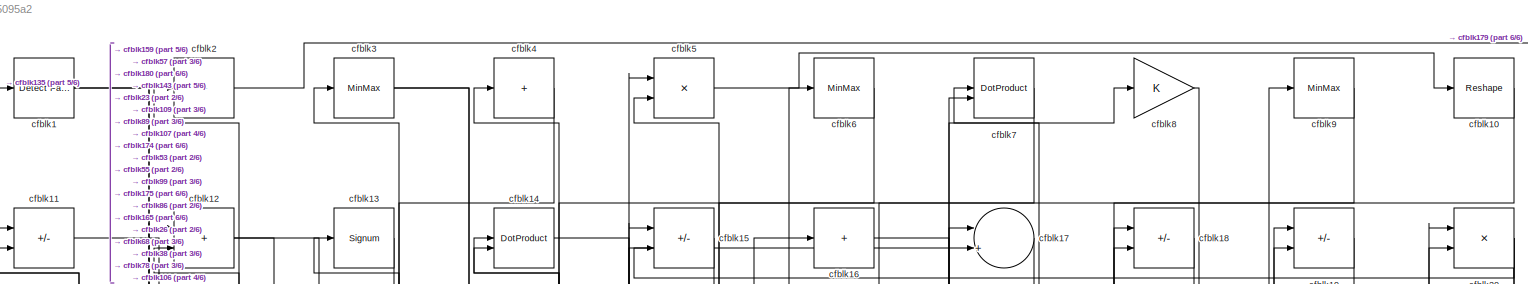
[diagram: root canvas - part 1/6, full width, top band]
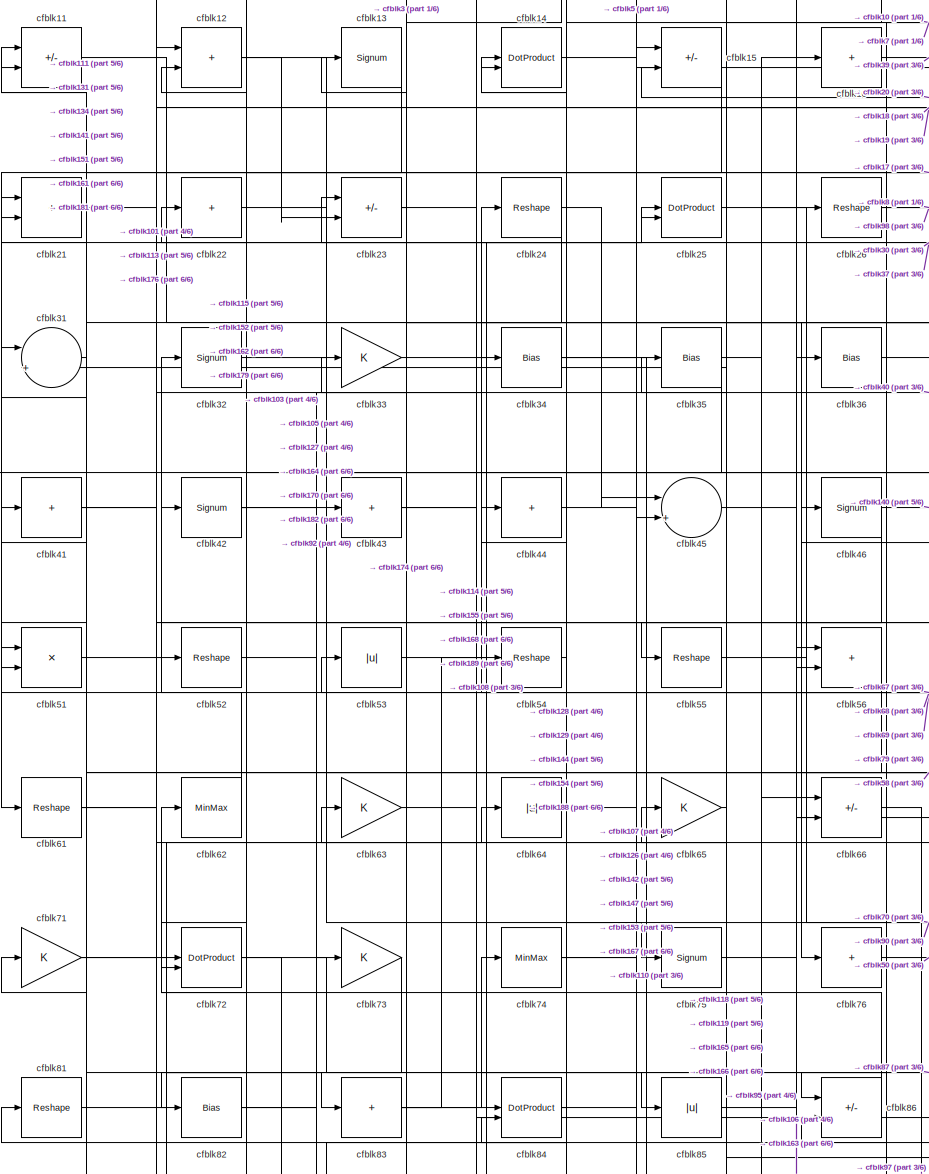
[diagram: root canvas - part 2/6, top left region]
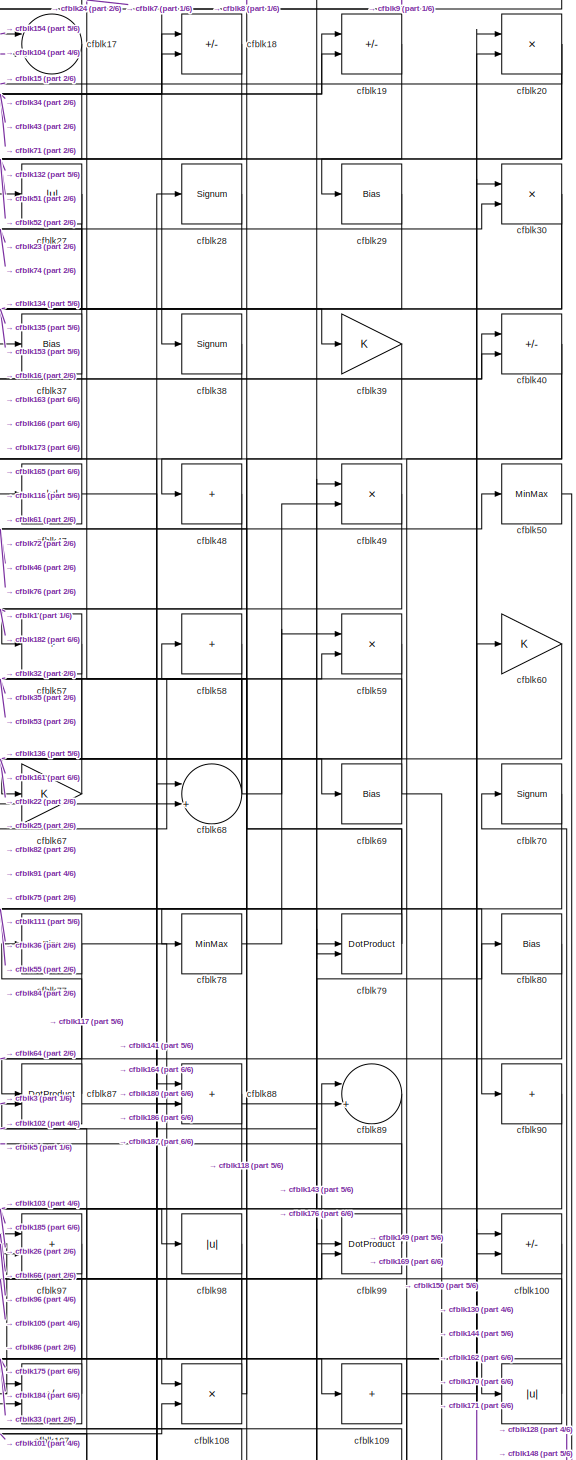
[diagram: root canvas - part 3/6, top right region]
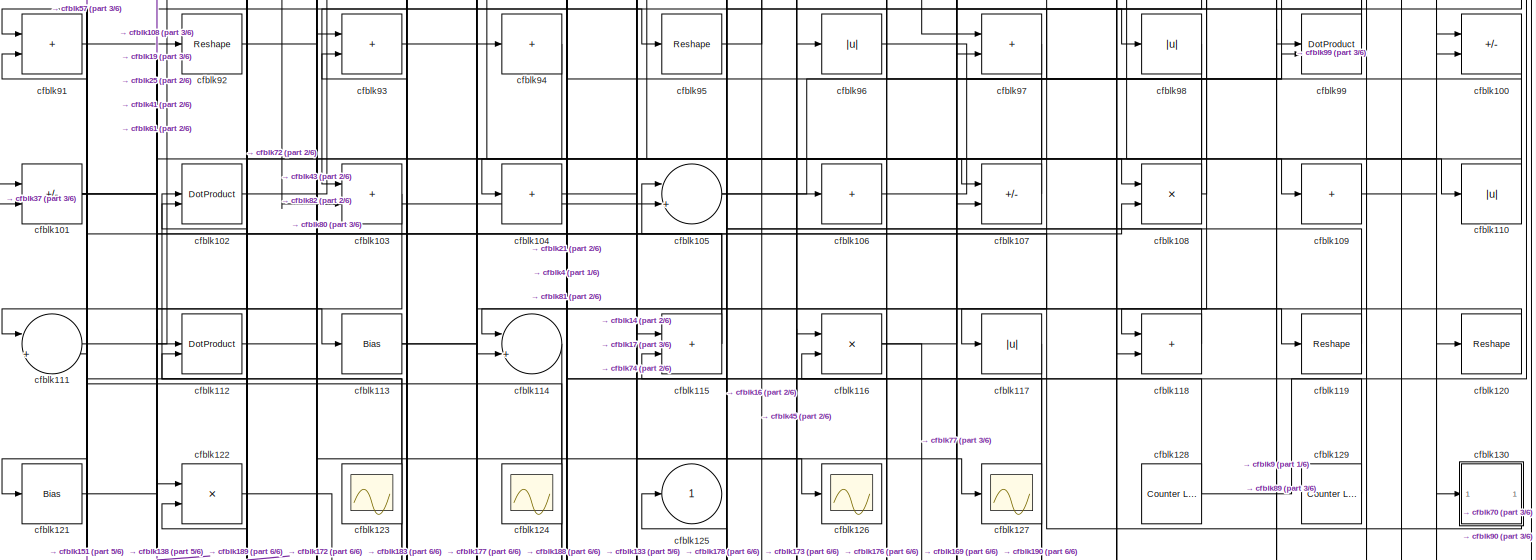
[diagram: root canvas - part 4/6, full width, middle band]
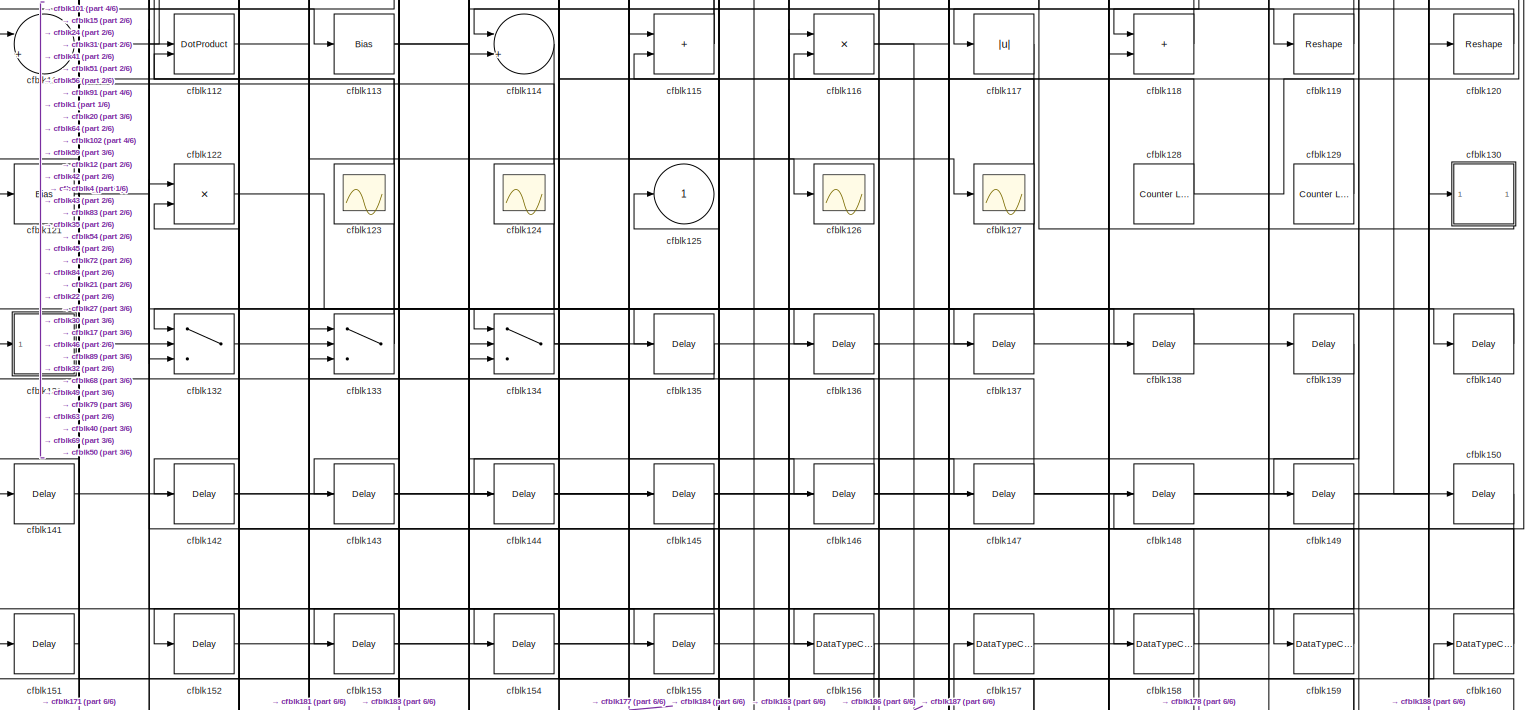
[diagram: root canvas - part 5/6, full width, bottom band]
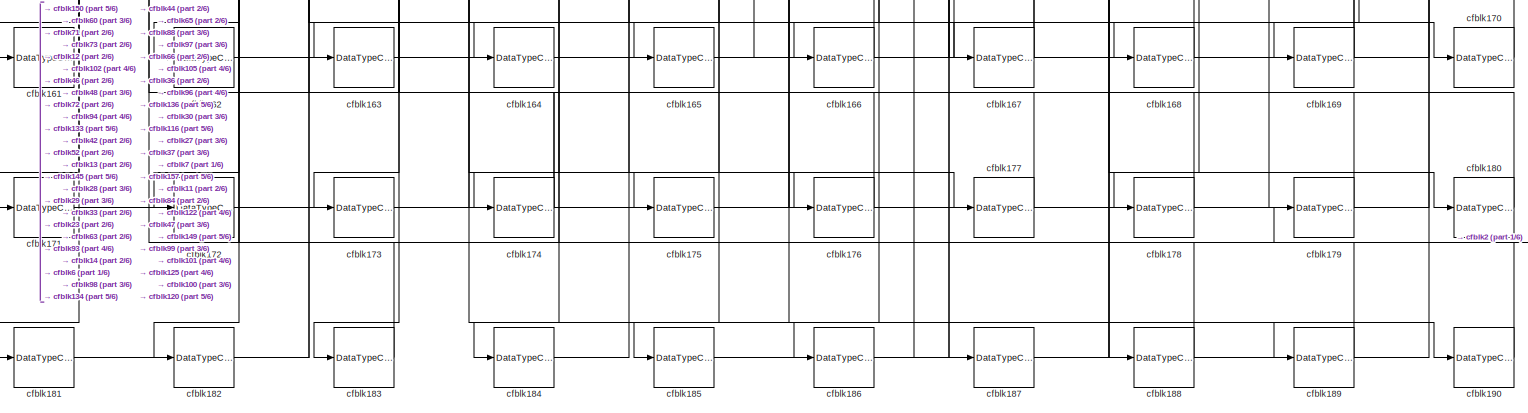
[diagram: root canvas - part 6/6, full width, bottom band]
MODEL slx_6407d25095a2
KIND model
CONFIG AbsTol = auto
CONFIG EnableMultiTasking = off
CONFIG FixedStep = auto
CONFIG MaxStep = auto
CONFIG MinStep = auto
CONFIG RelTol = 1e-3
CONFIG SampleTimeConstraint = Unconstrained
CONFIG SolverName = VariableStepAuto
CONFIG StartTime = 0.0
CONFIG StopTime = 10.0
BLOCK [Reference] cfblk1  REF=hdlsllib/Logic and Bit
Operations/Detect Fall
Nonpositive
  SourceBlock = hdlsllib/Logic and Bit\nOperations/Detect Fall\nNonpositive
  SourceType = Detect Fall Nonpositive
BLOCK [Reshape] cfblk10
BLOCK [Sum] cfblk100
  IconShape = rectangular
  Inputs = +-
BLOCK [Sum] cfblk101
  IconShape = rectangular
  Inputs = +-
BLOCK [DotProduct] cfblk102
  OutDataTypeStr = Inherit: Inherit via internal rule
BLOCK [Sum] cfblk103
  IconShape = rectangular
BLOCK [Sum] cfblk104
  IconShape = rectangular
  Inputs = +
BLOCK [Sum] cfblk105
  Inputs = |++
BLOCK [Sum] cfblk106
  IconShape = rectangular
  Inputs = +
BLOCK [Sum] cfblk107
  IconShape = rectangular
  Inputs = +-
BLOCK [Product] cfblk108
  Inputs = */
  RndMeth = Zero
  SaturateOnIntegerOverflow = on
BLOCK [Sum] cfblk109
  IconShape = rectangular
  Inputs = +
BLOCK [Sum] cfblk11
  IconShape = rectangular
  Inputs = +-
BLOCK [Abs] cfblk110
  SaturateOnIntegerOverflow = off
BLOCK [Sum] cfblk111
  Inputs = |++
BLOCK [DotProduct] cfblk112
  OutDataTypeStr = Inherit: Inherit via internal rule
BLOCK [Bias] cfblk113
  Bias = 0.0
  SaturateOnIntegerOverflow = off
BLOCK [Sum] cfblk114
  Inputs = |++
BLOCK [Sum] cfblk115
  IconShape = rectangular
BLOCK [Product] cfblk116
  Inputs = */
  RndMeth = Zero
  SaturateOnIntegerOverflow = on
BLOCK [Abs] cfblk117
  SaturateOnIntegerOverflow = off
BLOCK [Sum] cfblk118
  IconShape = rectangular
BLOCK [Reshape] cfblk119
BLOCK [Sum] cfblk12
  IconShape = rectangular
BLOCK [Reshape] cfblk120
BLOCK [Bias] cfblk121
  Bias = 0.0
  SaturateOnIntegerOverflow = off
BLOCK [Product] cfblk122
  Inputs = */
  RndMeth = Zero
  SaturateOnIntegerOverflow = on
BLOCK [Scope] cfblk123
  Floating = on
  NumInputPorts = 1
  ScopeSpecificationString = Simulink.scopes.TimeScopeBlockCfg('CurrentConfiguration', extmgr.ConfigurationSet(extmgr.Configuration('Core','General UI',true,'FigureColor',[0.156862745098039 0.156862745098039 0.156862745098039]),extmgr.Configuration('Core','Source UI',true),extmgr.Configuration('Sources','WiredSimulink',true,'DataLoggingVariableName','ScopeData1','DataLoggingSaveFormat','StructureWithTime','DataLoggingLimitDat...<+2713ch>
BLOCK [Scope] cfblk124
  Floating = on
  NumInputPorts = 1
  ScopeSpecificationString = Simulink.scopes.TimeScopeBlockCfg('CurrentConfiguration', extmgr.ConfigurationSet(extmgr.Configuration('Core','General UI',true,'FigureColor',[0.156862745098039 0.156862745098039 0.156862745098039]),extmgr.Configuration('Core','Source UI',true),extmgr.Configuration('Sources','WiredSimulink',true,'DataLoggingVariableName','ScopeData1','DataLoggingSaveFormat','StructureWithTime','DataLoggingLimitDat...<+2713ch>
BLOCK [Outport] cfblk125
  VectorParamsAs1DForOutWhenUnconnected = off
BLOCK [Scope] cfblk126
  Floating = off
  NumInputPorts = 1
  ScopeSpecificationString = Simulink.scopes.TimeScopeBlockCfg('CurrentConfiguration', extmgr.ConfigurationSet(extmgr.Configuration('Core','General UI',true),extmgr.Configuration('Core','Source UI',true),extmgr.Configuration('Sources','WiredSimulink',true,'DataLoggingVariableName','ScopeData2','DataLoggingSaveFormat','Array','DataLoggingLimitDataPoints',true,'DataLoggingDecimation','1'),extmgr.Configuration('Visuals','Time Do...<+868ch>
BLOCK [Scope] cfblk127
  Floating = off
  NumInputPorts = 1
  ScopeSpecificationString = Simulink.scopes.TimeScopeBlockCfg('CurrentConfiguration', extmgr.ConfigurationSet(extmgr.Configuration('Core','General UI',true),extmgr.Configuration('Core','Source UI',true),extmgr.Configuration('Sources','WiredSimulink',true,'DataLoggingVariableName','ScopeData2','DataLoggingSaveFormat','Array','DataLoggingLimitDataPoints',true,'DataLoggingDecimation','1'),extmgr.Configuration('Visuals','Time Do...<+868ch>
BLOCK [Reference] cfblk128  REF=hdlsllib/Sources/Counter
Limited
  SourceBlock = hdlsllib/Sources/Counter\nLimited
  SourceType = Counter Limited
BLOCK [Reference] cfblk129  REF=hdlsllib/Sources/Counter
Limited
  SourceBlock = hdlsllib/Sources/Counter\nLimited
  SourceType = Counter Limited
BLOCK [Signum] cfblk13
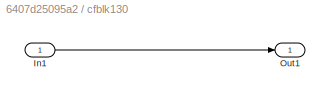
BLOCK [SubSystem] cfblk130
  LibrarySourceBlock = hdlsllib/Ports &\nSubsystems/Subsystem
BLOCK [Inport] cfblk130/In1
BLOCK [Outport] cfblk130/Out1
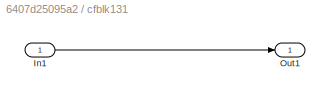
BLOCK [SubSystem] cfblk131
  LibrarySourceBlock = hdlsllib/Ports &\nSubsystems/Subsystem
BLOCK [Inport] cfblk131/In1
BLOCK [Outport] cfblk131/Out1
BLOCK [Switch] cfblk132
  InputSameDT = off
  SaturateOnIntegerOverflow = off
BLOCK [Switch] cfblk133
  InputSameDT = off
  SaturateOnIntegerOverflow = off
BLOCK [Switch] cfblk134
  InputSameDT = off
  SaturateOnIntegerOverflow = off
BLOCK [Delay] cfblk135
  InputPortMap = u0
  SampleTime = 1
BLOCK [Delay] cfblk136
  InputPortMap = u0
  SampleTime = 1
BLOCK [Delay] cfblk137
  InputPortMap = u0
  SampleTime = 1
BLOCK [Delay] cfblk138
  InputPortMap = u0
  SampleTime = 1
BLOCK [Delay] cfblk139
  InputPortMap = u0
  SampleTime = 1
BLOCK [DotProduct] cfblk14
  OutDataTypeStr = Inherit: Inherit via internal rule
BLOCK [Delay] cfblk140
  InputPortMap = u0
  SampleTime = 1
BLOCK [Delay] cfblk141
  InputPortMap = u0
  SampleTime = 1
BLOCK [Delay] cfblk142
  InputPortMap = u0
  SampleTime = 1
BLOCK [Delay] cfblk143
  InputPortMap = u0
  SampleTime = 1
BLOCK [Delay] cfblk144
  InputPortMap = u0
  SampleTime = 1
BLOCK [Delay] cfblk145
  InputPortMap = u0
  SampleTime = 1
BLOCK [Delay] cfblk146
  InputPortMap = u0
  SampleTime = 1
BLOCK [Delay] cfblk147
  InputPortMap = u0
  SampleTime = 1
BLOCK [Delay] cfblk148
  InputPortMap = u0
  SampleTime = 1
BLOCK [Delay] cfblk149
  InputPortMap = u0
  SampleTime = 1
BLOCK [Sum] cfblk15
  IconShape = rectangular
  Inputs = +-
BLOCK [Delay] cfblk150
  InputPortMap = u0
  SampleTime = 1
BLOCK [Delay] cfblk151
  InputPortMap = u0
  SampleTime = 1
BLOCK [Delay] cfblk152
  InputPortMap = u0
  SampleTime = 1
BLOCK [Delay] cfblk153
  InputPortMap = u0
  SampleTime = 1
BLOCK [Delay] cfblk154
  InputPortMap = u0
  SampleTime = 1
BLOCK [Delay] cfblk155
  InputPortMap = u0
  SampleTime = 1
BLOCK [DataTypeConversion] cfblk156
  OutDataTypeStr = uint8
  RndMeth = Floor
  SaturateOnIntegerOverflow = off
BLOCK [DataTypeConversion] cfblk157
  OutDataTypeStr = uint8
  RndMeth = Floor
  SaturateOnIntegerOverflow = off
BLOCK [DataTypeConversion] cfblk158
  OutDataTypeStr = uint8
  RndMeth = Floor
  SaturateOnIntegerOverflow = off
BLOCK [DataTypeConversion] cfblk159
  OutDataTypeStr = uint8
  RndMeth = Floor
  SaturateOnIntegerOverflow = off
BLOCK [Sum] cfblk16
  IconShape = rectangular
  Inputs = +
BLOCK [DataTypeConversion] cfblk160
  OutDataTypeStr = uint8
  RndMeth = Floor
  SaturateOnIntegerOverflow = off
BLOCK [DataTypeConversion] cfblk161
  OutDataTypeStr = uint8
  RndMeth = Floor
  SaturateOnIntegerOverflow = off
BLOCK [DataTypeConversion] cfblk162
  OutDataTypeStr = uint8
  RndMeth = Floor
  SaturateOnIntegerOverflow = off
BLOCK [DataTypeConversion] cfblk163
  RndMeth = Floor
  SaturateOnIntegerOverflow = off
BLOCK [DataTypeConversion] cfblk164
  OutDataTypeStr = uint8
  RndMeth = Floor
  SaturateOnIntegerOverflow = off
BLOCK [DataTypeConversion] cfblk165
  RndMeth = Floor
  SaturateOnIntegerOverflow = off
BLOCK [DataTypeConversion] cfblk166
  OutDataTypeStr = uint8
  RndMeth = Floor
  SaturateOnIntegerOverflow = off
BLOCK [DataTypeConversion] cfblk167
  RndMeth = Floor
  SaturateOnIntegerOverflow = off
BLOCK [DataTypeConversion] cfblk168
  OutDataTypeStr = uint8
  RndMeth = Floor
  SaturateOnIntegerOverflow = off
BLOCK [DataTypeConversion] cfblk169
  RndMeth = Floor
  SaturateOnIntegerOverflow = off
BLOCK [Sum] cfblk17
  Inputs = |++
BLOCK [DataTypeConversion] cfblk170
  OutDataTypeStr = uint8
  RndMeth = Floor
  SaturateOnIntegerOverflow = off
BLOCK [DataTypeConversion] cfblk171
  OutDataTypeStr = uint8
  RndMeth = Floor
  SaturateOnIntegerOverflow = off
BLOCK [DataTypeConversion] cfblk172
  OutDataTypeStr = uint8
  RndMeth = Floor
  SaturateOnIntegerOverflow = off
BLOCK [DataTypeConversion] cfblk173
  OutDataTypeStr = uint8
  RndMeth = Floor
  SaturateOnIntegerOverflow = off
BLOCK [DataTypeConversion] cfblk174
  RndMeth = Floor
  SaturateOnIntegerOverflow = off
BLOCK [DataTypeConversion] cfblk175
  OutDataTypeStr = uint8
  RndMeth = Floor
  SaturateOnIntegerOverflow = off
BLOCK [DataTypeConversion] cfblk176
  RndMeth = Floor
  SaturateOnIntegerOverflow = off
BLOCK [DataTypeConversion] cfblk177
  OutDataTypeStr = uint8
  RndMeth = Floor
  SaturateOnIntegerOverflow = off
BLOCK [DataTypeConversion] cfblk178
  OutDataTypeStr = uint8
  RndMeth = Floor
  SaturateOnIntegerOverflow = off
BLOCK [DataTypeConversion] cfblk179
  OutDataTypeStr = uint8
  RndMeth = Floor
  SaturateOnIntegerOverflow = off
BLOCK [Sum] cfblk18
  IconShape = rectangular
  Inputs = +-
BLOCK [DataTypeConversion] cfblk180
  OutDataTypeStr = uint8
  RndMeth = Floor
  SaturateOnIntegerOverflow = off
BLOCK [DataTypeConversion] cfblk181
  OutDataTypeStr = uint8
  RndMeth = Floor
  SaturateOnIntegerOverflow = off
BLOCK [DataTypeConversion] cfblk182
  OutDataTypeStr = uint8
  RndMeth = Floor
  SaturateOnIntegerOverflow = off
BLOCK [DataTypeConversion] cfblk183
  OutDataTypeStr = uint8
  RndMeth = Floor
  SaturateOnIntegerOverflow = off
BLOCK [DataTypeConversion] cfblk184
  OutDataTypeStr = uint8
  RndMeth = Floor
  SaturateOnIntegerOverflow = off
BLOCK [DataTypeConversion] cfblk185
  RndMeth = Floor
  SaturateOnIntegerOverflow = off
BLOCK [DataTypeConversion] cfblk186
  OutDataTypeStr = uint8
  RndMeth = Floor
  SaturateOnIntegerOverflow = off
BLOCK [DataTypeConversion] cfblk187
  OutDataTypeStr = uint8
  RndMeth = Floor
  SaturateOnIntegerOverflow = off
BLOCK [DataTypeConversion] cfblk188
  RndMeth = Floor
  SaturateOnIntegerOverflow = off
BLOCK [DataTypeConversion] cfblk189
  OutDataTypeStr = uint8
  RndMeth = Floor
  SaturateOnIntegerOverflow = off
BLOCK [Sum] cfblk19
  IconShape = rectangular
  Inputs = +-
BLOCK [DataTypeConversion] cfblk190
  OutDataTypeStr = uint8
  RndMeth = Floor
  SaturateOnIntegerOverflow = off
BLOCK [Sum] cfblk2
  IconShape = rectangular
  Inputs = +
BLOCK [Product] cfblk20
  Inputs = */
  RndMeth = Zero
  SaturateOnIntegerOverflow = on
BLOCK [Sum] cfblk21
  IconShape = rectangular
BLOCK [Sum] cfblk22
  IconShape = rectangular
  Inputs = +
BLOCK [Sum] cfblk23
  IconShape = rectangular
  Inputs = +-
BLOCK [Reshape] cfblk24
BLOCK [DotProduct] cfblk25
  OutDataTypeStr = Inherit: Inherit via internal rule
BLOCK [Reshape] cfblk26
BLOCK [Abs] cfblk27
  SaturateOnIntegerOverflow = off
BLOCK [Signum] cfblk28
BLOCK [Bias] cfblk29
  Bias = 0.0
  SaturateOnIntegerOverflow = off
BLOCK [MinMax] cfblk3
BLOCK [Product] cfblk30
  Inputs = */
  RndMeth = Zero
  SaturateOnIntegerOverflow = on
BLOCK [Sum] cfblk31
  Inputs = |++
BLOCK [Signum] cfblk32
BLOCK [Gain] cfblk33
BLOCK [Bias] cfblk34
  Bias = 0.0
  SaturateOnIntegerOverflow = off
BLOCK [Bias] cfblk35
  Bias = 0.0
  SaturateOnIntegerOverflow = off
BLOCK [Bias] cfblk36
  Bias = 0.0
  SaturateOnIntegerOverflow = off
BLOCK [Bias] cfblk37
  Bias = 0.0
  SaturateOnIntegerOverflow = off
BLOCK [Signum] cfblk38
BLOCK [Gain] cfblk39
BLOCK [Sum] cfblk4
  IconShape = rectangular
  Inputs = +
BLOCK [Sum] cfblk40
  IconShape = rectangular
  Inputs = +-
BLOCK [Sum] cfblk41
  IconShape = rectangular
  Inputs = +
BLOCK [Signum] cfblk42
BLOCK [Sum] cfblk43
  IconShape = rectangular
  Inputs = +
BLOCK [Sum] cfblk44
  IconShape = rectangular
  Inputs = +
BLOCK [Sum] cfblk45
  Inputs = |++
BLOCK [Signum] cfblk46
BLOCK [Abs] cfblk47
  SaturateOnIntegerOverflow = off
BLOCK [Sum] cfblk48
  IconShape = rectangular
  Inputs = +
BLOCK [Product] cfblk49
  Inputs = */
  RndMeth = Zero
  SaturateOnIntegerOverflow = on
BLOCK [Product] cfblk5
  Inputs = */
  RndMeth = Zero
  SaturateOnIntegerOverflow = on
BLOCK [MinMax] cfblk50
BLOCK [Product] cfblk51
  Inputs = */
  RndMeth = Zero
  SaturateOnIntegerOverflow = on
BLOCK [Reshape] cfblk52
BLOCK [Abs] cfblk53
  SaturateOnIntegerOverflow = off
BLOCK [Reshape] cfblk54
BLOCK [Reshape] cfblk55
BLOCK [Sum] cfblk56
  IconShape = rectangular
BLOCK [Sum] cfblk57
  IconShape = rectangular
  Inputs = +
BLOCK [Sum] cfblk58
  IconShape = rectangular
  Inputs = +
BLOCK [Product] cfblk59
  Inputs = */
  RndMeth = Zero
  SaturateOnIntegerOverflow = on
BLOCK [MinMax] cfblk6
BLOCK [Gain] cfblk60
BLOCK [Reshape] cfblk61
BLOCK [MinMax] cfblk62
BLOCK [Gain] cfblk63
BLOCK [Abs] cfblk64
  SaturateOnIntegerOverflow = off
BLOCK [Gain] cfblk65
BLOCK [Sum] cfblk66
  IconShape = rectangular
  Inputs = +-
BLOCK [Gain] cfblk67
BLOCK [Sum] cfblk68
  Inputs = |++
BLOCK [Bias] cfblk69
  Bias = 0.0
  SaturateOnIntegerOverflow = off
BLOCK [DotProduct] cfblk7
  OutDataTypeStr = Inherit: Inherit via internal rule
BLOCK [Signum] cfblk70
BLOCK [Gain] cfblk71
BLOCK [DotProduct] cfblk72
  OutDataTypeStr = Inherit: Inherit via internal rule
BLOCK [Gain] cfblk73
BLOCK [MinMax] cfblk74
BLOCK [Signum] cfblk75
BLOCK [Sum] cfblk76
  IconShape = rectangular
  Inputs = +
BLOCK [Bias] cfblk77
  Bias = 0.0
  SaturateOnIntegerOverflow = off
BLOCK [MinMax] cfblk78
BLOCK [DotProduct] cfblk79
  OutDataTypeStr = Inherit: Inherit via internal rule
BLOCK [Gain] cfblk8
BLOCK [Bias] cfblk80
  Bias = 0.0
  SaturateOnIntegerOverflow = off
BLOCK [Reshape] cfblk81
BLOCK [Bias] cfblk82
  Bias = 0.0
  SaturateOnIntegerOverflow = off
BLOCK [Sum] cfblk83
  IconShape = rectangular
  Inputs = +
BLOCK [DotProduct] cfblk84
  OutDataTypeStr = Inherit: Inherit via internal rule
BLOCK [Abs] cfblk85
  SaturateOnIntegerOverflow = off
BLOCK [Sum] cfblk86
  IconShape = rectangular
  Inputs = +-
BLOCK [DotProduct] cfblk87
  OutDataTypeStr = Inherit: Inherit via internal rule
BLOCK [Sum] cfblk88
  IconShape = rectangular
BLOCK [Sum] cfblk89
  Inputs = |++
BLOCK [MinMax] cfblk9
BLOCK [Sum] cfblk90
  IconShape = rectangular
  Inputs = +
BLOCK [Sum] cfblk91
  IconShape = rectangular
BLOCK [Reshape] cfblk92
BLOCK [Sum] cfblk93
  IconShape = rectangular
BLOCK [Sum] cfblk94
  IconShape = rectangular
  Inputs = +
BLOCK [Reshape] cfblk95
BLOCK [Abs] cfblk96
  SaturateOnIntegerOverflow = off
BLOCK [Sum] cfblk97
  IconShape = rectangular
BLOCK [Abs] cfblk98
  SaturateOnIntegerOverflow = off
BLOCK [DotProduct] cfblk99
  OutDataTypeStr = Inherit: Inherit via internal rule
LINE cfblk100:1 -> cfblk169:1
NET cfblk101:1 -> cfblk108:2, cfblk151:1, cfblk19:2, cfblk25:1
LINE cfblk102:1 -> cfblk80:1
LINE cfblk103:1 -> cfblk121:1
LINE cfblk104:1 -> cfblk17:2
NET cfblk105:1 -> cfblk190:1, cfblk89:1
LINE cfblk106:1 -> cfblk9:1
LINE cfblk107:1 -> cfblk4:1
NET cfblk108:1 -> cfblk58:1, cfblk86:2
LINE cfblk109:1 -> cfblk20:2
LINE cfblk10:1 -> cfblk55:1
LINE cfblk110:1 -> cfblk87:2
LINE cfblk111:1 -> cfblk59:2
LINE cfblk112:1 -> cfblk158:1
NET cfblk113:1 -> cfblk119:1, cfblk146:1
LINE cfblk114:1 -> cfblk142:1
NET cfblk115:1 -> cfblk21:2, cfblk22:1
NET cfblk116:1 -> cfblk187:1, cfblk40:2
LINE cfblk117:1 -> cfblk132:1
LINE cfblk118:1 -> cfblk31:2
LINE cfblk119:1 -> cfblk63:1
LINE cfblk11:1 -> cfblk76:1
LINE cfblk120:1 -> cfblk114:1
LINE cfblk121:1 -> cfblk138:1
LINE cfblk122:1 -> cfblk188:1
NET cfblk128:1 -> cfblk21:1, cfblk70:1
LINE cfblk129:1 -> cfblk81:1
NET cfblk12:1 -> cfblk23:2, cfblk75:1
LINE cfblk130/In1:1 -> cfblk130/Out1:1
LINE cfblk130:1 -> cfblk105:1
LINE cfblk131/In1:1 -> cfblk131/Out1:1
NET cfblk131:1 -> cfblk41:1, cfblk64:1
LINE cfblk132:1 -> cfblk137:1
NET cfblk133:1 -> cfblk102:1, cfblk91:2
NET cfblk134:1 -> cfblk177:1, cfblk31:1, cfblk49:1
LINE cfblk135:1 -> cfblk1:1
LINE cfblk136:1 -> cfblk186:1
LINE cfblk137:1 -> cfblk116:1
LINE cfblk138:1 -> cfblk134:1
LINE cfblk139:1 -> cfblk156:1
LINE cfblk13:1 -> cfblk61:1
LINE cfblk140:1 -> cfblk133:2
LINE cfblk141:1 -> cfblk68:1
LINE cfblk142:1 -> cfblk15:1
LINE cfblk143:1 -> cfblk79:1
LINE cfblk144:1 -> cfblk20:1
LINE cfblk145:1 -> cfblk183:1
LINE cfblk146:1 -> cfblk133:1
LINE cfblk147:1 -> cfblk115:2
LINE cfblk148:1 -> cfblk30:1
LINE cfblk149:1 -> cfblk178:1
LINE cfblk14:1 -> cfblk107:1
LINE cfblk150:1 -> cfblk171:1
LINE cfblk151:1 -> cfblk51:2
LINE cfblk152:1 -> cfblk134:2
LINE cfblk153:1 -> cfblk45:2
LINE cfblk154:1 -> cfblk17:1
LINE cfblk155:1 -> cfblk12:2
LINE cfblk156:1 -> cfblk160:1
LINE cfblk157:1 -> cfblk139:1
LINE cfblk158:1 -> cfblk116:2
LINE cfblk159:1 -> cfblk112:1
LINE cfblk15:1 -> cfblk131:1
LINE cfblk160:1 -> cfblk112:2
LINE cfblk161:1 -> cfblk71:1
LINE cfblk162:1 -> cfblk60:1
NET cfblk163:1 -> cfblk157:1, cfblk36:1
LINE cfblk164:1 -> cfblk28:1
NET cfblk165:1 -> cfblk37:1, cfblk66:1, cfblk7:2
LINE cfblk166:1 -> cfblk65:1
NET cfblk167:1 -> cfblk11:2, cfblk84:2
LINE cfblk168:1 -> cfblk44:1
NET cfblk169:1 -> cfblk101:1, cfblk125:1
LINE cfblk16:1 -> cfblk39:1
LINE cfblk170:1 -> cfblk100:1
LINE cfblk171:1 -> cfblk100:2
LINE cfblk172:1 -> cfblk96:1
LINE cfblk173:1 -> cfblk94:1
NET cfblk174:1 -> cfblk13:1, cfblk33:1
LINE cfblk175:1 -> cfblk6:1
NET cfblk176:1 -> cfblk12:1, cfblk99:1
LINE cfblk177:1 -> cfblk93:1
LINE cfblk178:1 -> cfblk93:2
LINE cfblk179:1 -> cfblk72:2
LINE cfblk17:1 -> cfblk52:1
LINE cfblk180:1 -> cfblk2:1
LINE cfblk181:1 -> cfblk133:3
LINE cfblk182:1 -> cfblk73:1
LINE cfblk183:1 -> cfblk102:2
LINE cfblk184:1 -> cfblk145:1
NET cfblk185:1 -> cfblk27:1, cfblk47:1
LINE cfblk186:1 -> cfblk88:1
LINE cfblk187:1 -> cfblk88:2
NET cfblk188:1 -> cfblk120:1, cfblk14:2
LINE cfblk189:1 -> cfblk122:1
LINE cfblk18:1 -> cfblk51:1
LINE cfblk190:1 -> cfblk122:2
LINE cfblk19:1 -> cfblk29:1
NET cfblk1:1 -> cfblk159:1, cfblk57:1
NET cfblk20:1 -> cfblk132:3, cfblk15:2, cfblk66:2
LINE cfblk21:1 -> cfblk113:1
LINE cfblk22:1 -> cfblk67:1
NET cfblk23:1 -> cfblk189:1, cfblk3:1
NET cfblk24:1 -> cfblk111:2, cfblk45:1
LINE cfblk25:1 -> cfblk69:1
NET cfblk26:1 -> cfblk8:1, cfblk98:1
NET cfblk27:1 -> cfblk134:3, cfblk135:1
LINE cfblk28:1 -> cfblk163:1
LINE cfblk29:1 -> cfblk173:1
LINE cfblk2:1 -> cfblk179:1
NET cfblk30:1 -> cfblk153:1, cfblk166:1
LINE cfblk31:1 -> cfblk111:1
LINE cfblk32:1 -> cfblk118:2
LINE cfblk33:1 -> cfblk108:1
NET cfblk34:1 -> cfblk110:1, cfblk19:1
NET cfblk35:1 -> cfblk144:1, cfblk26:1
LINE cfblk36:1 -> cfblk79:2
NET cfblk37:1 -> cfblk101:2, cfblk23:1
LINE cfblk38:1 -> cfblk48:1
LINE cfblk39:1 -> cfblk72:1
NET cfblk3:1 -> cfblk109:1, cfblk89:2
NET cfblk40:1 -> cfblk118:1, cfblk149:1
NET cfblk41:1 -> cfblk25:2, cfblk92:1
NET cfblk42:1 -> cfblk152:1, cfblk170:1, cfblk34:1
NET cfblk43:1 -> cfblk114:2, cfblk18:1
LINE cfblk44:1 -> cfblk167:1
LINE cfblk45:1 -> cfblk106:1
NET cfblk46:1 -> cfblk140:1, cfblk162:1, cfblk56:2
LINE cfblk47:1 -> cfblk180:1
LINE cfblk48:1 -> cfblk182:1
LINE cfblk49:1 -> cfblk132:2
LINE cfblk4:1 -> cfblk143:1
LINE cfblk50:1 -> cfblk148:1
LINE cfblk51:1 -> cfblk42:1
LINE cfblk52:1 -> cfblk164:1
LINE cfblk53:1 -> cfblk5:1
LINE cfblk54:1 -> cfblk154:1
LINE cfblk55:1 -> cfblk90:1
LINE cfblk56:1 -> cfblk141:1
LINE cfblk57:1 -> cfblk91:1
LINE cfblk58:1 -> cfblk82:1
LINE cfblk59:1 -> cfblk136:1
LINE cfblk5:1 -> cfblk10:1
LINE cfblk60:1 -> cfblk161:1
NET cfblk61:1 -> cfblk40:1, cfblk95:1
LINE cfblk62:1 -> cfblk11:1
LINE cfblk63:1 -> cfblk168:1
LINE cfblk64:1 -> cfblk87:1
LINE cfblk65:1 -> cfblk165:1
LINE cfblk66:1 -> cfblk97:1
LINE cfblk67:1 -> cfblk35:1
NET cfblk68:1 -> cfblk24:1, cfblk49:2, cfblk7:1
NET cfblk69:1 -> cfblk150:1, cfblk32:1
LINE cfblk6:1 -> cfblk174:1
LINE cfblk70:1 -> cfblk84:1
NET cfblk71:1 -> cfblk18:2, cfblk83:1
NET cfblk72:1 -> cfblk103:2, cfblk115:1
LINE cfblk73:1 -> cfblk181:1
NET cfblk74:1 -> cfblk126:1, cfblk30:2
LINE cfblk75:1 -> cfblk68:2
LINE cfblk76:1 -> cfblk50:1
NET cfblk77:1 -> cfblk130:1, cfblk97:2
LINE cfblk78:1 -> cfblk59:1
NET cfblk79:1 -> cfblk46:1, cfblk53:1
LINE cfblk7:1 -> cfblk86:1
LINE cfblk80:1 -> cfblk104:1
LINE cfblk81:1 -> cfblk85:1
NET cfblk82:1 -> cfblk105:2, cfblk127:1
NET cfblk83:1 -> cfblk155:1, cfblk54:1, cfblk74:1
NET cfblk84:1 -> cfblk147:1, cfblk14:1
LINE cfblk85:1 -> cfblk56:1
LINE cfblk86:1 -> cfblk62:1
LINE cfblk87:1 -> cfblk77:1
LINE cfblk88:1 -> cfblk185:1
LINE cfblk89:1 -> cfblk117:1
LINE cfblk8:1 -> cfblk78:1
LINE cfblk90:1 -> cfblk103:1
LINE cfblk91:1 -> cfblk107:2
LINE cfblk92:1 -> cfblk43:1
LINE cfblk93:1 -> cfblk176:1
LINE cfblk94:1 -> cfblk172:1
LINE cfblk95:1 -> cfblk16:1
LINE cfblk96:1 -> cfblk99:2
LINE cfblk97:1 -> cfblk175:1
LINE cfblk98:1 -> cfblk184:1
LINE cfblk99:1 -> cfblk5:2
LINE cfblk9:1 -> cfblk38:1
note: NET lines group one-source signal fan-out (src -> all destinations, sorted); 1:1 wires keep LINE
